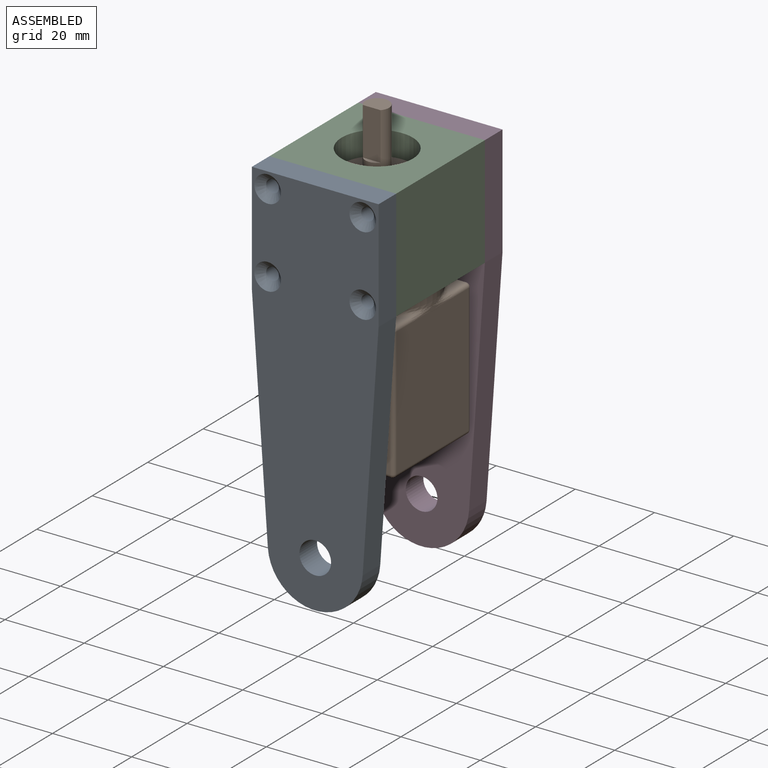
[diagram: assembled view]
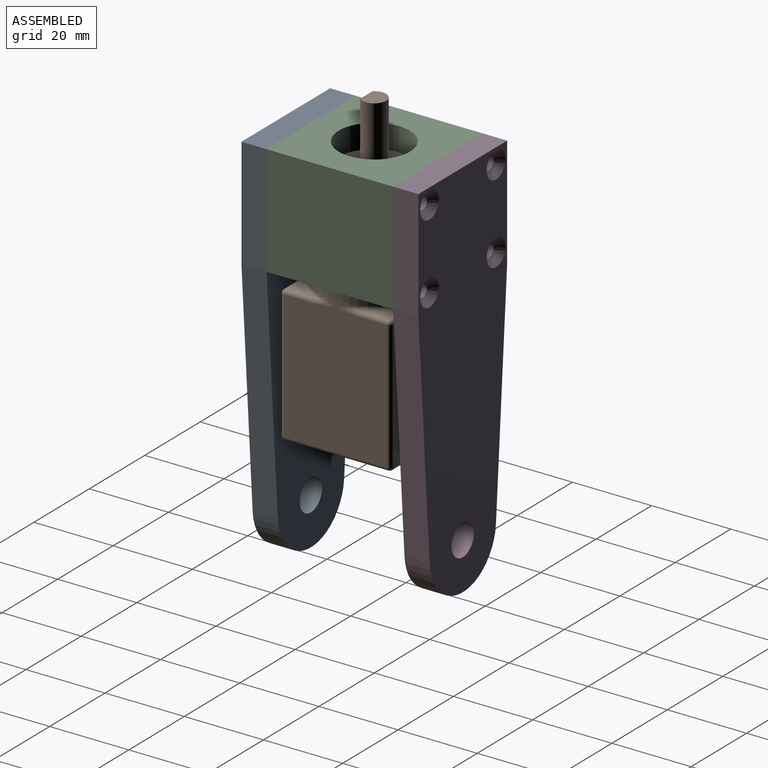
[diagram: assembled view, second angle]
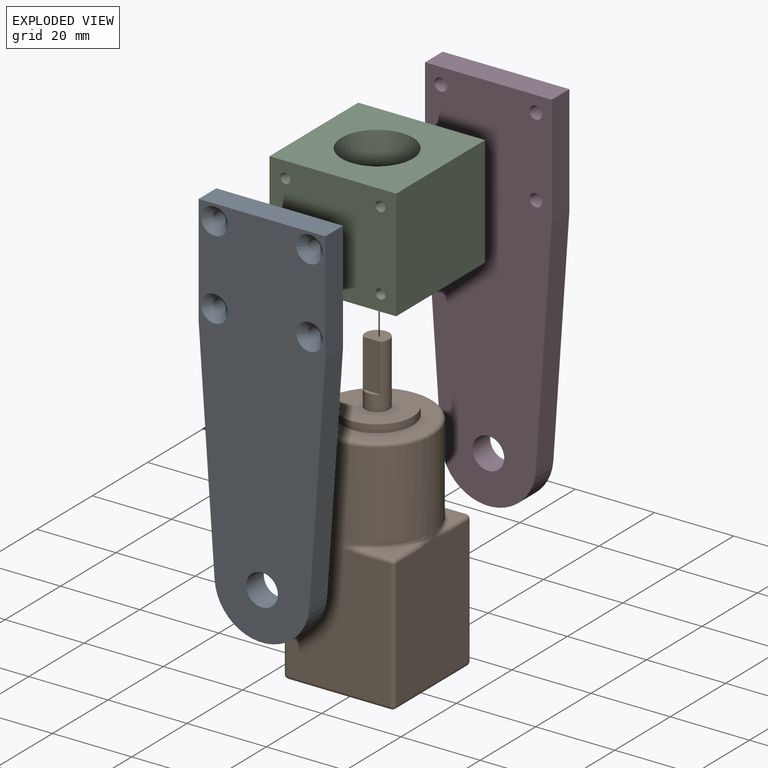
[diagram: exploded view]
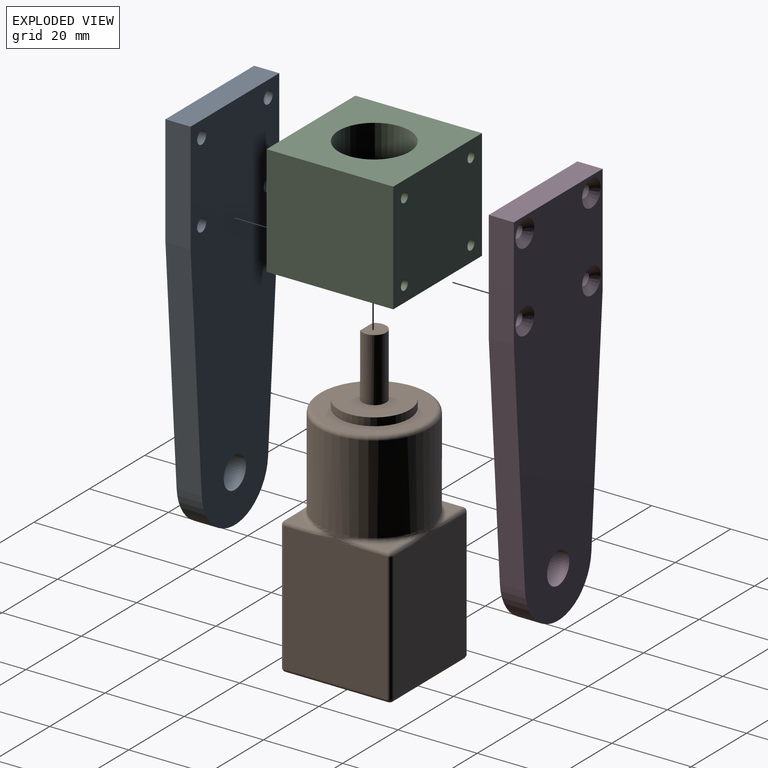
[diagram: exploded view, second angle]
ASSEMBLY  parts=4 mates=3
PART A: 17 faces, bbox 97x6.4x32 mm
  f0: plane 28x6.35mm, normal (0,0,1), area 177.8mm2, adj f1,f5,f7,f8
  f1: plane 57.83x6.35mm, normal (-0.07,0,1), area 368.1mm2, adj f0,f2,f7,f8
  f2: cylinder r=12mm len=23.94mm, axis (0,1,0), area 228.8mm2, adj f1,f3,f7,f8
  f3: plane 57.83x6.35mm, normal (-0.07,0,-1), area 368.1mm2, adj f2,f4,f7,f8
  f4: plane 28x6.35mm, normal (0,0,-1), area 177.8mm2, adj f3,f5,f7,f8
  f5: plane 32x6.35mm, normal (1,0,0), area 203.2mm2, adj f0,f4,f7,f8
  f6: cylinder r=4mm len=8mm, axis (0,1,0), area 159.6mm2, adj f7,f8
  f7: plane 97x32mm, normal (0,-1,0), area 2527.7mm2, adj f0,f1,f2,f3,f4,f5,f6,f10
  f8: plane 97x32mm, normal (0,1,0), area 2637.4mm2, adj f0,f1,f2,f3,f4,f5,f6,f9
  f9: cylinder r=1.6mm len=4.59mm, axis (0,-1,0), area 46.1mm2, adj f8,f10
  f10: cone r=1.6mm half-angle=45deg, axis (0,-1,0), area 38.8mm2, adj f7,f9
  f11: cylinder r=1.6mm len=4.59mm, axis (0,-1,0), area 46.1mm2, adj f8,f12
  f12: cone r=1.6mm half-angle=45deg, axis (0,-1,0), area 38.8mm2, adj f7,f11
  f13: cylinder r=1.6mm len=4.59mm, axis (0,-1,0), area 46.1mm2, adj f8,f14
  f14: cone r=1.6mm half-angle=45deg, axis (0,-1,0), area 38.8mm2, adj f7,f13
  f15: cylinder r=1.6mm len=4.59mm, axis (0,-1,0), area 46.1mm2, adj f8,f16
  f16: cone r=1.6mm half-angle=45deg, axis (0,-1,0), area 38.8mm2, adj f7,f15
PART B: 70 faces, bbox 30.3x76.7x30.3 mm
  f0: plane 32.5x26mm, normal (0,0,-1), area 845mm2, adj f34,f35,f38,f39,f47,f48,f49
  f1: plane 32.5x26mm, normal (1,0,0), area 845mm2, adj f24,f25,f42,f47,f54,f60,f61
  f2: plane 32.5x26mm, normal (0,0,1), area 845mm2, adj f17,f18,f41,f53,f54,f64,f65
  f3: plane 32.5x26mm, normal (-1,0,0), area 845mm2, adj f27,f28,f39,f40,f51,f52,f53
  f4: plane 5.52x5.52mm, normal (0,-1,0), area 12.5mm2, adj f48,f61,f62
  f5: plane 5.52x5.52mm, normal (0,-1,0), area 12.5mm2, adj f60,f65,f68
  f6: plane 5.52x5.52mm, normal (0,-1,0), area 12.5mm2, adj f52,f63,f64
  f7: plane 26x26mm, normal (0,1,0), area 676mm2, adj f38,f40,f41,f42
  f8: plane 5.52x5.52mm, normal (0,-1,0), area 12.5mm2, adj f49,f50,f51
  f9: cylinder r=14mm len=28mm, axis (0,1,0), area 1952.8mm2, adj f20,f21,f22,f30,f31,f32,f50,f56
  f10: plane 26x26mm, normal (0,-1,0), area 276.5mm2, adj f11,f69
  f11: cylinder r=9mm len=18mm, axis (0,1,0), area 113.1mm2, adj f10,f12
  f12: plane 18x18mm, normal (0,-1,0), area 226.2mm2, adj f11,f13
  f13: cylinder r=3mm len=16mm, axis (0,1,0), area 241mm2, adj f12,f14,f15,f16
  f14: plane 6x5mm, normal (0,-1,0), area 25.2mm2, adj f13,f16
  f15: plane 4.47x1mm, normal (0,-1,0), area 3.1mm2, adj f13,f16
  f16: plane 12x4.47mm, normal (0,0,1), area 53.7mm2, adj f13,f14,f15
  f17: bspline ~7.48x1.01mm, area 6.4mm2, adj f2,f18,f65,f67
  f18: bspline ~7.48x1.01mm, area 6.4mm2, adj f2,f17,f19,f64
  f19: bspline ~7.48x1.57mm, area 4.9mm2, adj f18,f20,f63,f64
  f20: bspline ~7.07x1.87mm, area 5.3mm2, adj f9,f19,f21,f63
  f21: bspline ~7.07x1.87mm, area 5.3mm2, adj f9,f20,f67,f68
  f22: bspline ~7.07x1.87mm, area 5.3mm2, adj f9,f23,f62,f66
  f23: bspline ~7.48x1.57mm, area 4.9mm2, adj f22,f24,f61,f62
  f24: bspline ~7.48x1.01mm, area 6.4mm2, adj f1,f23,f25,f61
  f25: bspline ~7.48x1.01mm, area 6.4mm2, adj f1,f24,f26,f60
  f26: bspline ~7.48x1.57mm, area 4.9mm2, adj f25,f60,f66,f68
  f27: bspline ~7.48x1.01mm, area 6.4mm2, adj f3,f28,f52,f57
  f28: bspline ~7.48x1.01mm, area 6.4mm2, adj f3,f27,f29,f51
  f29: bspline ~7.48x1.57mm, area 4.9mm2, adj f28,f30,f50,f51
  f30: bspline ~7.07x1.87mm, area 5.3mm2, adj f9,f29,f31,f50
  f31: bspline ~7.07x1.87mm, area 5.3mm2, adj f9,f30,f57,f63
  f32: bspline ~7.07x1.87mm, area 5.3mm2, adj f9,f33,f50,f56
  f33: bspline ~7.48x1.57mm, area 4.9mm2, adj f32,f34,f49,f50
  f34: bspline ~7.48x1.01mm, area 6.4mm2, adj f0,f33,f35,f49
  f35: bspline ~7.48x1.01mm, area 6.4mm2, adj f0,f34,f36,f48
  f36: bspline ~7.48x1.57mm, area 4.9mm2, adj f35,f48,f56,f62
  f37: sphere r=1mm, area 2.1mm2, adj f38,f39,f40
  f38: cylinder r=1mm len=26mm, axis (-1,0,0), area 40.8mm2, adj f0,f7,f37,f43
  f39: cylinder r=1mm len=32.5mm, axis (0,-1,0), area 51.1mm2, adj f0,f3,f37,f44
  f40: cylinder r=1mm len=26mm, axis (0,0,1), area 40.8mm2, adj f3,f7,f37,f45
  f41: cylinder r=1mm len=26mm, axis (1,0,0), area 40.8mm2, adj f2,f7,f45,f46
  f42: cylinder r=1mm len=26mm, axis (0,0,-1), area 40.8mm2, adj f1,f7,f43,f46
  f43: sphere r=1mm, area 1mm2, adj f38,f42,f47
  f44: sphere r=1mm, area 1.6mm2, adj f39,f49,f51
  f45: sphere r=1mm, area 2.1mm2, adj f40,f41,f53
  f46: sphere r=1mm, area 1mm2, adj f41,f42,f54
  f47: cylinder r=1mm len=32.5mm, axis (0,1,0), area 51.1mm2, adj f0,f1,f43,f55
  f48: cylinder r=1mm len=5.59mm, axis (1,0,0), area 8.7mm2, adj f0,f4,f35,f36,f55
  f49: cylinder r=1mm len=5.59mm, axis (1,0,0), area 8.7mm2, adj f0,f8,f33,f34,f44
  f50: torus R=15mm, axis (0,-1,0), area 12.1mm2, adj f8,f9,f29,f30,f32,f33
  f51: cylinder r=1mm len=5.59mm, axis (0,0,-1), area 8.7mm2, adj f3,f8,f28,f29,f44
  f52: cylinder r=1mm len=5.59mm, axis (0,0,-1), area 8.7mm2, adj f3,f6,f27,f57,f58
  f53: cylinder r=1mm len=32.5mm, axis (0,1,0), area 51.1mm2, adj f2,f3,f45,f58
  f54: cylinder r=1mm len=32.5mm, axis (0,-1,0), area 51.1mm2, adj f1,f2,f46,f59
  f55: sphere r=1mm, area 1.6mm2, adj f47,f48,f61
  f56: bspline ~7.07x1.87mm, area 5.3mm2, adj f9,f32,f36,f62
  f57: bspline ~7.48x1.57mm, area 4.9mm2, adj f27,f31,f52,f63
  f58: sphere r=1mm, area 1.6mm2, adj f52,f53,f64
  f59: sphere r=1mm, area 1.6mm2, adj f54,f60,f65
  f60: cylinder r=1mm len=5.59mm, axis (0,0,1), area 8.7mm2, adj f1,f5,f25,f26,f59
  f61: cylinder r=1mm len=5.59mm, axis (0,0,1), area 8.7mm2, adj f1,f4,f23,f24,f55
  f62: torus R=15mm, axis (0,-1,0), area 12.1mm2, adj f4,f9,f22,f23,f36,f56
  f63: torus R=15mm, axis (0,-1,0), area 12.1mm2, adj f6,f9,f19,f20,f31,f57
  f64: cylinder r=1mm len=5.59mm, axis (-1,0,0), area 8.7mm2, adj f2,f6,f18,f19,f58
  f65: cylinder r=1mm len=5.59mm, axis (-1,0,0), area 8.7mm2, adj f2,f5,f17,f59,f67
  f66: bspline ~7.07x1.87mm, area 5.3mm2, adj f9,f22,f26,f68
  f67: bspline ~7.48x1.57mm, area 4.9mm2, adj f17,f21,f65,f68
  f68: torus R=15mm, axis (0,-1,0), area 12mm2, adj f5,f9,f21,f26,f66,f67
  f69: torus R=13mm, axis (0,-1,0), area 134.6mm2, adj f9,f10
PART C: 25 faces, bbox 28x32x32 mm
  f0: plane 28x28mm, normal (-1,0,0), area 361.3mm2, adj f1,f4
  f1: cylinder r=9mm len=18mm, axis (-1,0,0), area 451mm2, adj f0,f2
  f2: plane 32x32mm, normal (1,0,0), area 769.5mm2, adj f1,f5,f6,f7,f8
  f3: plane 32x32mm, normal (-1,0,0), area 408.2mm2, adj f4,f5,f6,f7,f8
  f4: cylinder r=14mm len=28mm, axis (-1,0,0), area 1761.5mm2, adj f0,f3
  f5: plane 32x28mm, normal (0,-1,0), area 876.4mm2, adj f2,f3,f6,f7,f10,f12,f14,f16
  f6: plane 32x28mm, normal (0,0,1), area 896mm2, adj f2,f3,f5,f8
  f7: plane 32x28mm, normal (0,0,-1), area 896mm2, adj f2,f3,f5,f8
  f8: plane 32x28mm, normal (0,1,0), area 876.4mm2, adj f2,f3,f6,f7,f18,f20,f22,f24
  f9: cone r=0mm half-angle=59deg, axis (0,-1,0), area 5.7mm2, adj f10
  f10: cylinder r=1.25mm len=6.5mm, axis (0,-1,0), area 51.1mm2, adj f5,f9
  f11: cone r=0mm half-angle=59deg, axis (0,-1,0), area 5.7mm2, adj f12
  f12: cylinder r=1.25mm len=6.5mm, axis (0,-1,0), area 51.1mm2, adj f5,f11
  f13: cone r=0mm half-angle=59deg, axis (0,-1,0), area 5.7mm2, adj f14
  f14: cylinder r=1.25mm len=6.5mm, axis (0,-1,0), area 51.1mm2, adj f5,f13
  f15: cone r=0mm half-angle=59deg, axis (0,-1,0), area 5.7mm2, adj f16
  f16: cylinder r=1.25mm len=6.5mm, axis (0,-1,0), area 51.1mm2, adj f5,f15
  f17: cone r=0mm half-angle=59deg, axis (0,1,0), area 5.7mm2, adj f18
  f18: cylinder r=1.25mm len=6.5mm, axis (0,1,0), area 51.1mm2, adj f8,f17
  f19: cone r=0mm half-angle=59deg, axis (0,1,0), area 5.7mm2, adj f20
  f20: cylinder r=1.25mm len=6.5mm, axis (0,1,0), area 51.1mm2, adj f8,f19
  f21: cone r=0mm half-angle=59deg, axis (0,1,0), area 5.7mm2, adj f22
  f22: cylinder r=1.25mm len=6.5mm, axis (0,1,0), area 51.1mm2, adj f8,f21
  f23: cone r=0mm half-angle=59deg, axis (0,1,0), area 5.7mm2, adj f24
  f24: cylinder r=1.25mm len=6.5mm, axis (0,1,0), area 51.1mm2, adj f8,f23
PART D: same geometry as A
PLACE A rot(axis=(0,-1,0),90deg) t=(0,-16,0)mm
PLACE B rot(axis=(0,0.71,-0.71),180deg) t=(0,0,52.83)mm
PLACE C rot(axis=(0,-1,0),90deg) t=(0,0,77.03)mm
PLACE D rot(axis=(0.71,0,0.71),180deg) t=(0,16,0)mm
MATE fastened A.f8 <-> C.f5  axis (0,1,0) through (0,-16,85)mm
MATE fastened C.f1 <-> B.f11  axis (0,0,-1) through (0,0,77.03)mm
MATE fastened D.f8 <-> C.f8  axis (0,-1,0) through (0,16,85)mm
